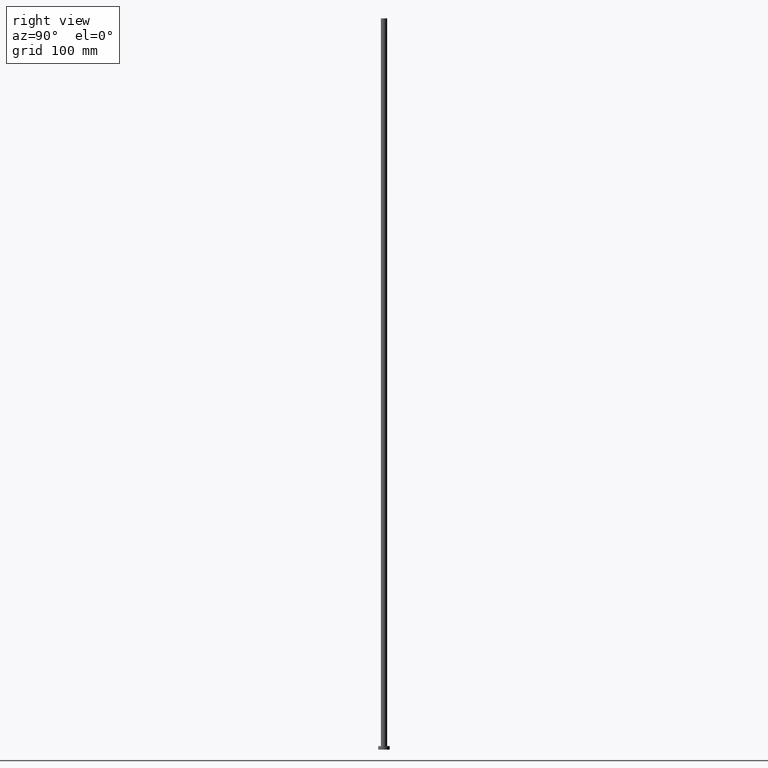
[diagram: clean part render]
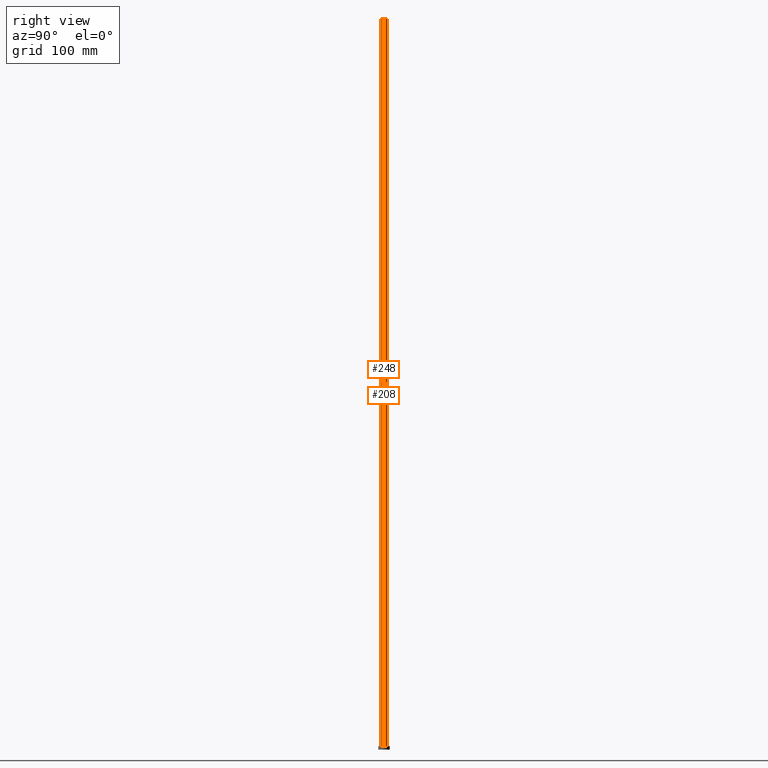
[diagram: same view with one multi-face feature highlighted, each face labeled with its STEP entity id]
A machine part, right view. The highlighted faces form ONE feature: a constant-radius fillet chain: 2 tangent blend faces with common blend radius 2.75 mm. The faces share edges in the B-rep.
Their STEP definitions:
[1] entity #248 (Cylinder):
#2 = VERTEX_POINT ( 'NONE', #206 ) ;
#3 = CIRCLE ( 'NONE', #85, 2.750000000000000000 ) ;
#21 = DIRECTION ( 'NONE',  ( -1.000000000000000000, 0.000000000000000000, 0.000000000000000000 ) ) ;
#24 = EDGE_CURVE ( 'NONE', #105, #210, #164, .T. ) ;
#34 = AXIS2_PLACEMENT_3D ( 'NONE', #225, #235, #21 ) ;
#41 = FACE_OUTER_BOUND ( 'NONE', #144, .T. ) ;
#42 = ORIENTED_EDGE ( 'NONE', *, *, #186, .F. ) ;
#46 = EDGE_CURVE ( 'NONE', #2, #187, #3, .T. ) ;
#53 = LINE ( 'NONE', #139, #158 ) ;
#54 = CARTESIAN_POINT ( 'NONE',  ( 2.750000000000000000, 3.367778697655221012E-16, 630.0000000000000000 ) ) ;
#55 = VECTOR ( 'NONE', #193, 1000.000000000000000 ) ;
#62 = DIRECTION ( 'NONE',  ( 0.000000000000000000, 0.000000000000000000, 1.000000000000000000 ) ) ;
#65 = CARTESIAN_POINT ( 'NONE',  ( 2.750000000000000000, 3.367778697655221012E-16, 630.0000000000000000 ) ) ;
#81 = DIRECTION ( 'NONE',  ( 1.000000000000000000, 0.000000000000000000, 0.000000000000000000 ) ) ;
#85 = AXIS2_PLACEMENT_3D ( 'NONE', #184, #147, #81 ) ;
#94 = ORIENTED_EDGE ( 'NONE', *, *, #101, .T. ) ;
#98 = ORIENTED_EDGE ( 'NONE', *, *, #46, .F. ) ;
#99 = ORIENTED_EDGE ( 'NONE', *, *, #24, .T. ) ;
#101 = EDGE_CURVE ( 'NONE', #2, #105, #53, .T. ) ;
#105 = VERTEX_POINT ( 'NONE', #128 ) ;
#115 = CYLINDRICAL_SURFACE ( 'NONE', #34, 2.750000000000000000 ) ;
#128 = CARTESIAN_POINT ( 'NONE',  ( -2.750000000000000000, 0.000000000000000000, 3.000000000000000000 ) ) ;
#139 = CARTESIAN_POINT ( 'NONE',  ( -2.750000000000000000, 0.000000000000000000, 630.0000000000000000 ) ) ;
#144 = EDGE_LOOP ( 'NONE', ( #42, #98, #94, #99 ) ) ;
#145 = DIRECTION ( 'NONE',  ( 1.000000000000000000, 0.000000000000000000, 0.000000000000000000 ) ) ;
#147 = DIRECTION ( 'NONE',  ( 0.000000000000000000, 0.000000000000000000, 1.000000000000000000 ) ) ;
#158 = VECTOR ( 'NONE', #189, 1000.000000000000000 ) ;
#163 = CARTESIAN_POINT ( 'NONE',  ( 2.750000000000000000, 3.367778697655221012E-16, 3.000000000000000000 ) ) ;
#164 = CIRCLE ( 'NONE', #205, 2.750000000000000000 ) ;
#184 = CARTESIAN_POINT ( 'NONE',  ( 0.000000000000000000, 0.000000000000000000, 630.0000000000000000 ) ) ;
#186 = EDGE_CURVE ( 'NONE', #187, #210, #252, .T. ) ;
#187 = VERTEX_POINT ( 'NONE', #65 ) ;
#189 = DIRECTION ( 'NONE',  ( -0.000000000000000000, -0.000000000000000000, -1.000000000000000000 ) ) ;
#193 = DIRECTION ( 'NONE',  ( -0.000000000000000000, -0.000000000000000000, -1.000000000000000000 ) ) ;
#205 = AXIS2_PLACEMENT_3D ( 'NONE', #242, #62, #145 ) ;
#206 = CARTESIAN_POINT ( 'NONE',  ( -2.750000000000000000, 0.000000000000000000, 630.0000000000000000 ) ) ;
#210 = VERTEX_POINT ( 'NONE', #163 ) ;
#225 = CARTESIAN_POINT ( 'NONE',  ( 0.000000000000000000, 0.000000000000000000, 630.0000000000000000 ) ) ;
#235 = DIRECTION ( 'NONE',  ( -0.000000000000000000, -0.000000000000000000, -1.000000000000000000 ) ) ;
#242 = CARTESIAN_POINT ( 'NONE',  ( 0.000000000000000000, 0.000000000000000000, 3.000000000000000000 ) ) ;
#248 = ADVANCED_FACE ( 'NONE', ( #41 ), #115, .T. ) ;
#252 = LINE ( 'NONE', #54, #55 ) ;
[2] entity #208 (Cylinder):
#2 = VERTEX_POINT ( 'NONE', #206 ) ;
#5 = DIRECTION ( 'NONE',  ( 1.000000000000000000, 0.000000000000000000, 0.000000000000000000 ) ) ;
#32 = CYLINDRICAL_SURFACE ( 'NONE', #113, 2.750000000000000000 ) ;
#51 = CARTESIAN_POINT ( 'NONE',  ( 0.000000000000000000, 0.000000000000000000, 630.0000000000000000 ) ) ;
#53 = LINE ( 'NONE', #139, #158 ) ;
#54 = CARTESIAN_POINT ( 'NONE',  ( 2.750000000000000000, 3.367778697655221012E-16, 630.0000000000000000 ) ) ;
#55 = VECTOR ( 'NONE', #193, 1000.000000000000000 ) ;
#58 = EDGE_CURVE ( 'NONE', #210, #105, #211, .T. ) ;
#60 = ORIENTED_EDGE ( 'NONE', *, *, #58, .T. ) ;
#64 = AXIS2_PLACEMENT_3D ( 'NONE', #243, #183, #5 ) ;
#65 = CARTESIAN_POINT ( 'NONE',  ( 2.750000000000000000, 3.367778697655221012E-16, 630.0000000000000000 ) ) ;
#77 = ORIENTED_EDGE ( 'NONE', *, *, #196, .F. ) ;
#82 = AXIS2_PLACEMENT_3D ( 'NONE', #51, #214, #212 ) ;
#101 = EDGE_CURVE ( 'NONE', #2, #105, #53, .T. ) ;
#105 = VERTEX_POINT ( 'NONE', #128 ) ;
#113 = AXIS2_PLACEMENT_3D ( 'NONE', #197, #220, #119 ) ;
#119 = DIRECTION ( 'NONE',  ( -1.000000000000000000, 0.000000000000000000, 0.000000000000000000 ) ) ;
#128 = CARTESIAN_POINT ( 'NONE',  ( -2.750000000000000000, 0.000000000000000000, 3.000000000000000000 ) ) ;
#139 = CARTESIAN_POINT ( 'NONE',  ( -2.750000000000000000, 0.000000000000000000, 630.0000000000000000 ) ) ;
#158 = VECTOR ( 'NONE', #189, 1000.000000000000000 ) ;
#163 = CARTESIAN_POINT ( 'NONE',  ( 2.750000000000000000, 3.367778697655221012E-16, 3.000000000000000000 ) ) ;
#166 = ORIENTED_EDGE ( 'NONE', *, *, #186, .T. ) ;
#183 = DIRECTION ( 'NONE',  ( 0.000000000000000000, 0.000000000000000000, 1.000000000000000000 ) ) ;
#186 = EDGE_CURVE ( 'NONE', #187, #210, #252, .T. ) ;
#187 = VERTEX_POINT ( 'NONE', #65 ) ;
#189 = DIRECTION ( 'NONE',  ( -0.000000000000000000, -0.000000000000000000, -1.000000000000000000 ) ) ;
#193 = DIRECTION ( 'NONE',  ( -0.000000000000000000, -0.000000000000000000, -1.000000000000000000 ) ) ;
#195 = FACE_OUTER_BOUND ( 'NONE', #209, .T. ) ;
#196 = EDGE_CURVE ( 'NONE', #187, #2, #231, .T. ) ;
#197 = CARTESIAN_POINT ( 'NONE',  ( 0.000000000000000000, 0.000000000000000000, 630.0000000000000000 ) ) ;
#206 = CARTESIAN_POINT ( 'NONE',  ( -2.750000000000000000, 0.000000000000000000, 630.0000000000000000 ) ) ;
#208 = ADVANCED_FACE ( 'NONE', ( #195 ), #32, .T. ) ;
#209 = EDGE_LOOP ( 'NONE', ( #77, #166, #60, #239 ) ) ;
#210 = VERTEX_POINT ( 'NONE', #163 ) ;
#211 = CIRCLE ( 'NONE', #64, 2.750000000000000000 ) ;
#212 = DIRECTION ( 'NONE',  ( 1.000000000000000000, 0.000000000000000000, 0.000000000000000000 ) ) ;
#214 = DIRECTION ( 'NONE',  ( 0.000000000000000000, 0.000000000000000000, 1.000000000000000000 ) ) ;
#220 = DIRECTION ( 'NONE',  ( -0.000000000000000000, -0.000000000000000000, -1.000000000000000000 ) ) ;
#231 = CIRCLE ( 'NONE', #82, 2.750000000000000000 ) ;
#239 = ORIENTED_EDGE ( 'NONE', *, *, #101, .F. ) ;
#243 = CARTESIAN_POINT ( 'NONE',  ( 0.000000000000000000, 0.000000000000000000, 3.000000000000000000 ) ) ;
#252 = LINE ( 'NONE', #54, #55 ) ;